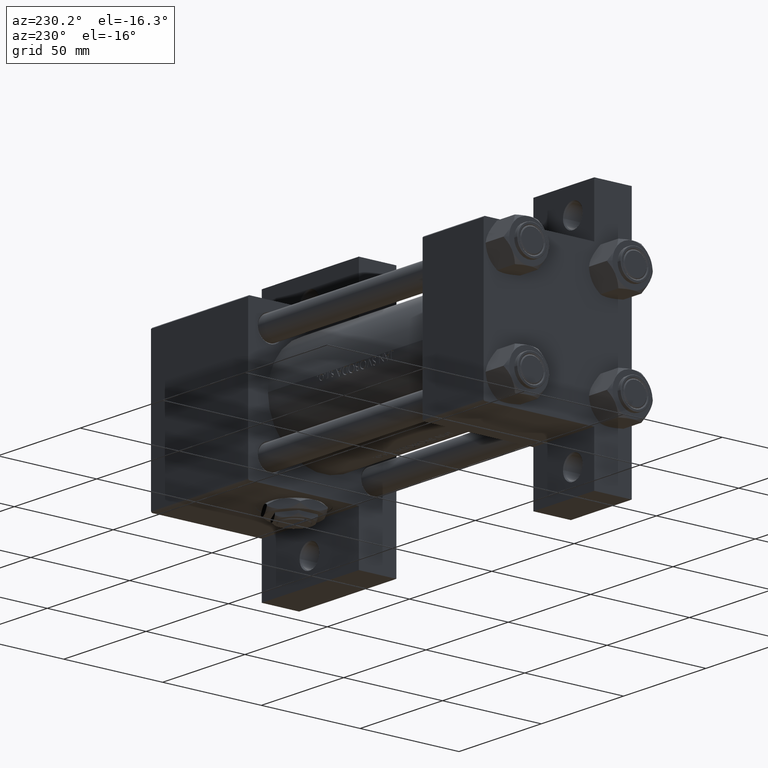
[diagram: clean part render]
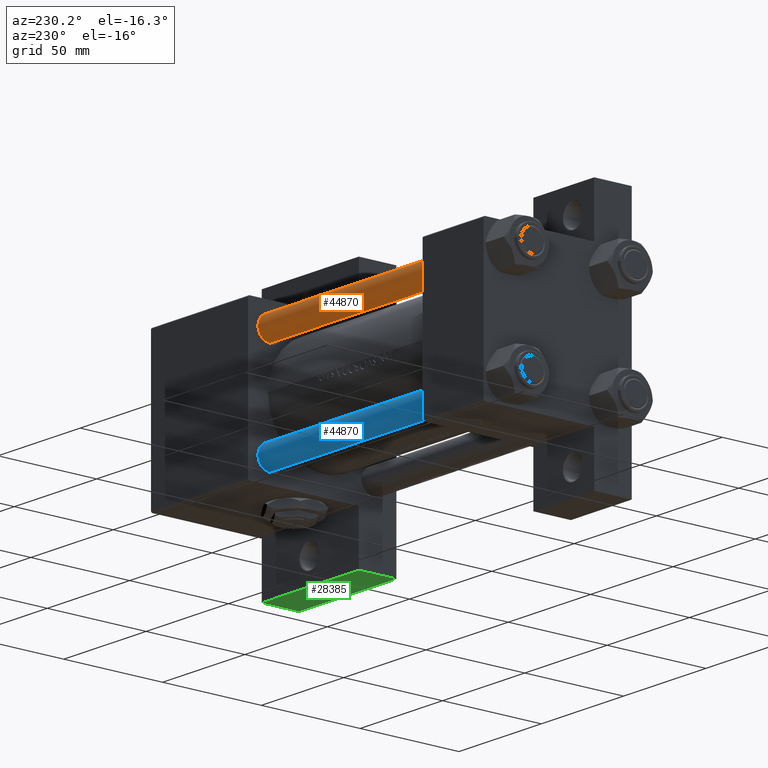
[diagram: same view with three faces highlighted in distinct colors, each labeled with its STEP entity id]
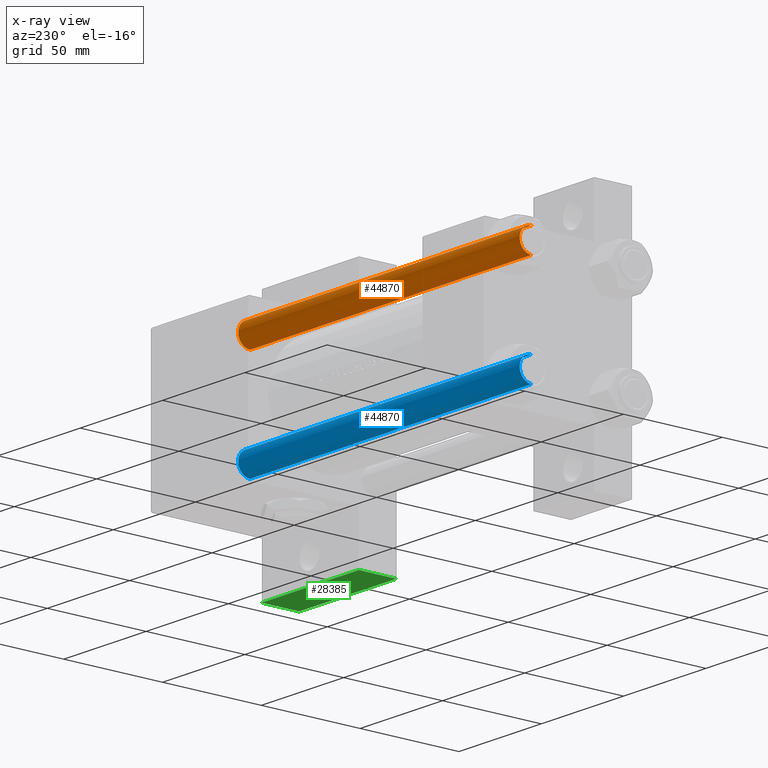
[diagram: x-ray of the same camera — body ghosted, the three highlighted faces saturated]
A machine part, auxiliary view with three faces highlighted in distinct colors.
The next image is the same camera in x-ray (body ghosted, the three faces saturated) — at least one of them is partly hidden behind the body in this view.
Their STEP definitions:

[orange] entity #44870 — the highlighted cylindrical surface (edge-blend (fillet) strip) has radius 6 mm, axis along (-1, -0, -0).
#79 = AXIS2_PLACEMENT_3D ( 'NONE', #31497, #15603, #27308 ) ;
#737 = CIRCLE ( 'NONE', #15093, 6.000000000000000888 ) ;
#1161 = EDGE_CURVE ( 'NONE', #48507, #2739, #737, .T. ) ;
#1685 = EDGE_LOOP ( 'NONE', ( #9074, #19260, #31243, #37472 ) ) ;
#2739 = VERTEX_POINT ( 'NONE', #40871 ) ;
#3610 = CARTESIAN_POINT ( 'NONE',  ( -6.000000000000000888, 0.000000000000000000, 172.0000000000000000 ) ) ;
#5489 = VERTEX_POINT ( 'NONE', #16944 ) ;
#9074 = ORIENTED_EDGE ( 'NONE', *, *, #41871, .T. ) ;
#9291 = LINE ( 'NONE', #11384, #49253 ) ;
#11384 = CARTESIAN_POINT ( 'NONE',  ( 6.000000000000000888, 7.347880794884120722E-16, 172.0000000000000000 ) ) ;
#13047 = CARTESIAN_POINT ( 'NONE',  ( 0.000000000000000000, 0.000000000000000000, 172.0000000000000000 ) ) ;
#15093 = AXIS2_PLACEMENT_3D ( 'NONE', #46628, #27713, #42890 ) ;
#15580 = VECTOR ( 'NONE', #26551, 1000.000000000000000 ) ;
#15603 = DIRECTION ( 'NONE',  ( 0.000000000000000000, 0.000000000000000000, -1.000000000000000000 ) ) ;
#16944 = CARTESIAN_POINT ( 'NONE',  ( 6.000000000000000888, 7.347880794884120722E-16, 171.4999999999999716 ) ) ;
#17571 = CIRCLE ( 'NONE', #79, 6.000000000000000888 ) ;
#18263 = EDGE_CURVE ( 'NONE', #47462, #2739, #26302, .T. ) ;
#19260 = ORIENTED_EDGE ( 'NONE', *, *, #30757, .T. ) ;
#20781 = CYLINDRICAL_SURFACE ( 'NONE', #22317, 6.000000000000000888 ) ;
#22317 = AXIS2_PLACEMENT_3D ( 'NONE', #13047, #25243, #36428 ) ;
#25243 = DIRECTION ( 'NONE',  ( -0.000000000000000000, -0.000000000000000000, -1.000000000000000000 ) ) ;
#26302 = LINE ( 'NONE', #3610, #15580 ) ;
#26551 = DIRECTION ( 'NONE',  ( -0.000000000000000000, -0.000000000000000000, -1.000000000000000000 ) ) ;
#26956 = CARTESIAN_POINT ( 'NONE',  ( -6.000000000000000888, 0.000000000000000000, 171.4999999999999716 ) ) ;
#27308 = DIRECTION ( 'NONE',  ( 1.000000000000000000, 0.000000000000000000, 0.000000000000000000 ) ) ;
#27713 = DIRECTION ( 'NONE',  ( -0.000000000000000000, -0.000000000000000000, 1.000000000000000000 ) ) ;
#30757 = EDGE_CURVE ( 'NONE', #5489, #48507, #9291, .T. ) ;
#31243 = ORIENTED_EDGE ( 'NONE', *, *, #1161, .T. ) ;
#31497 = CARTESIAN_POINT ( 'NONE',  ( 0.000000000000000000, 0.000000000000000000, 171.4999999999999716 ) ) ;
#34525 = DIRECTION ( 'NONE',  ( -0.000000000000000000, -0.000000000000000000, -1.000000000000000000 ) ) ;
#35945 = FACE_OUTER_BOUND ( 'NONE', #1685, .T. ) ;
#36428 = DIRECTION ( 'NONE',  ( -1.000000000000000000, 0.000000000000000000, 0.000000000000000000 ) ) ;
#37472 = ORIENTED_EDGE ( 'NONE', *, *, #18263, .F. ) ;
#37715 = CARTESIAN_POINT ( 'NONE',  ( 6.000000000000000888, 7.347880794884120722E-16, 0.5000000000000004441 ) ) ;
#40871 = CARTESIAN_POINT ( 'NONE',  ( -6.000000000000000888, 0.000000000000000000, 0.5000000000000004441 ) ) ;
#41871 = EDGE_CURVE ( 'NONE', #47462, #5489, #17571, .T. ) ;
#42890 = DIRECTION ( 'NONE',  ( 1.000000000000000000, 0.000000000000000000, 0.000000000000000000 ) ) ;
#44870 = ADVANCED_FACE ( 'NONE', ( #35945 ), #20781, .T. ) ;
#46628 = CARTESIAN_POINT ( 'NONE',  ( 0.000000000000000000, 0.000000000000000000, 0.5000000000000004441 ) ) ;
#47462 = VERTEX_POINT ( 'NONE', #26956 ) ;
#48507 = VERTEX_POINT ( 'NONE', #37715 ) ;
#49253 = VECTOR ( 'NONE', #34525, 1000.000000000000000 ) ;

[blue] entity #44870 — the highlighted cylindrical surface (edge-blend (fillet) strip) has radius 6 mm, axis along (1, -0, -0).
#79 = AXIS2_PLACEMENT_3D ( 'NONE', #31497, #15603, #27308 ) ;
#737 = CIRCLE ( 'NONE', #15093, 6.000000000000000888 ) ;
#1161 = EDGE_CURVE ( 'NONE', #48507, #2739, #737, .T. ) ;
#1685 = EDGE_LOOP ( 'NONE', ( #9074, #19260, #31243, #37472 ) ) ;
#2739 = VERTEX_POINT ( 'NONE', #40871 ) ;
#3610 = CARTESIAN_POINT ( 'NONE',  ( -6.000000000000000888, 0.000000000000000000, 172.0000000000000000 ) ) ;
#5489 = VERTEX_POINT ( 'NONE', #16944 ) ;
#9074 = ORIENTED_EDGE ( 'NONE', *, *, #41871, .T. ) ;
#9291 = LINE ( 'NONE', #11384, #49253 ) ;
#11384 = CARTESIAN_POINT ( 'NONE',  ( 6.000000000000000888, 7.347880794884120722E-16, 172.0000000000000000 ) ) ;
#13047 = CARTESIAN_POINT ( 'NONE',  ( 0.000000000000000000, 0.000000000000000000, 172.0000000000000000 ) ) ;
#15093 = AXIS2_PLACEMENT_3D ( 'NONE', #46628, #27713, #42890 ) ;
#15580 = VECTOR ( 'NONE', #26551, 1000.000000000000000 ) ;
#15603 = DIRECTION ( 'NONE',  ( 0.000000000000000000, 0.000000000000000000, -1.000000000000000000 ) ) ;
#16944 = CARTESIAN_POINT ( 'NONE',  ( 6.000000000000000888, 7.347880794884120722E-16, 171.4999999999999716 ) ) ;
#17571 = CIRCLE ( 'NONE', #79, 6.000000000000000888 ) ;
#18263 = EDGE_CURVE ( 'NONE', #47462, #2739, #26302, .T. ) ;
#19260 = ORIENTED_EDGE ( 'NONE', *, *, #30757, .T. ) ;
#20781 = CYLINDRICAL_SURFACE ( 'NONE', #22317, 6.000000000000000888 ) ;
#22317 = AXIS2_PLACEMENT_3D ( 'NONE', #13047, #25243, #36428 ) ;
#25243 = DIRECTION ( 'NONE',  ( -0.000000000000000000, -0.000000000000000000, -1.000000000000000000 ) ) ;
#26302 = LINE ( 'NONE', #3610, #15580 ) ;
#26551 = DIRECTION ( 'NONE',  ( -0.000000000000000000, -0.000000000000000000, -1.000000000000000000 ) ) ;
#26956 = CARTESIAN_POINT ( 'NONE',  ( -6.000000000000000888, 0.000000000000000000, 171.4999999999999716 ) ) ;
#27308 = DIRECTION ( 'NONE',  ( 1.000000000000000000, 0.000000000000000000, 0.000000000000000000 ) ) ;
#27713 = DIRECTION ( 'NONE',  ( -0.000000000000000000, -0.000000000000000000, 1.000000000000000000 ) ) ;
#30757 = EDGE_CURVE ( 'NONE', #5489, #48507, #9291, .T. ) ;
#31243 = ORIENTED_EDGE ( 'NONE', *, *, #1161, .T. ) ;
#31497 = CARTESIAN_POINT ( 'NONE',  ( 0.000000000000000000, 0.000000000000000000, 171.4999999999999716 ) ) ;
#34525 = DIRECTION ( 'NONE',  ( -0.000000000000000000, -0.000000000000000000, -1.000000000000000000 ) ) ;
#35945 = FACE_OUTER_BOUND ( 'NONE', #1685, .T. ) ;
#36428 = DIRECTION ( 'NONE',  ( -1.000000000000000000, 0.000000000000000000, 0.000000000000000000 ) ) ;
#37472 = ORIENTED_EDGE ( 'NONE', *, *, #18263, .F. ) ;
#37715 = CARTESIAN_POINT ( 'NONE',  ( 6.000000000000000888, 7.347880794884120722E-16, 0.5000000000000004441 ) ) ;
#40871 = CARTESIAN_POINT ( 'NONE',  ( -6.000000000000000888, 0.000000000000000000, 0.5000000000000004441 ) ) ;
#41871 = EDGE_CURVE ( 'NONE', #47462, #5489, #17571, .T. ) ;
#42890 = DIRECTION ( 'NONE',  ( 1.000000000000000000, 0.000000000000000000, 0.000000000000000000 ) ) ;
#44870 = ADVANCED_FACE ( 'NONE', ( #35945 ), #20781, .T. ) ;
#46628 = CARTESIAN_POINT ( 'NONE',  ( 0.000000000000000000, 0.000000000000000000, 0.5000000000000004441 ) ) ;
#47462 = VERTEX_POINT ( 'NONE', #26956 ) ;
#48507 = VERTEX_POINT ( 'NONE', #37715 ) ;
#49253 = VECTOR ( 'NONE', #34525, 1000.000000000000000 ) ;

[green] entity #28385 — the highlighted planar face has unit normal (-0, 0, -1).
#730 = LINE ( 'NONE', #26919, #36473 ) ;
#788 = VERTEX_POINT ( 'NONE', #27356 ) ;
#2365 = DIRECTION ( 'NONE',  ( 1.000000000000000000, 4.704334850106593822E-16, 0.000000000000000000 ) ) ;
#5292 = CARTESIAN_POINT ( 'NONE',  ( 202.0000000000000284, 63.50000000000000000, -18.50000000000000000 ) ) ;
#5757 = ORIENTED_EDGE ( 'NONE', *, *, #26720, .T. ) ;
#5888 = VERTEX_POINT ( 'NONE', #14362 ) ;
#5899 = CARTESIAN_POINT ( 'NONE',  ( 202.0000000000000284, 63.50000000000000000, -18.50000000000000000 ) ) ;
#9312 = CARTESIAN_POINT ( 'NONE',  ( 143.0000000000000284, 63.49999999999997158, -18.50000000000000000 ) ) ;
#10197 = AXIS2_PLACEMENT_3D ( 'NONE', #9312, #24526, #19551 ) ;
#12687 = DIRECTION ( 'NONE',  ( 0.000000000000000000, 0.000000000000000000, -1.000000000000000000 ) ) ;
#14362 = CARTESIAN_POINT ( 'NONE',  ( 202.0000000000000284, 63.50000000000000000, -37.50000000000000000 ) ) ;
#15511 = LINE ( 'NONE', #23714, #16721 ) ;
#16721 = VECTOR ( 'NONE', #22991, 1000.000000000000000 ) ;
#17840 = VERTEX_POINT ( 'NONE', #33550 ) ;
#18007 = ORIENTED_EDGE ( 'NONE', *, *, #28997, .F. ) ;
#19246 = VERTEX_POINT ( 'NONE', #5899 ) ;
#19551 = DIRECTION ( 'NONE',  ( -1.000000000000000000, -4.704334850106593822E-16, 0.000000000000000000 ) ) ;
#22991 = DIRECTION ( 'NONE',  ( 1.000000000000000000, 4.704334850106593822E-16, 0.000000000000000000 ) ) ;
#23714 = CARTESIAN_POINT ( 'NONE',  ( 143.0000000000000284, 63.49999999999997158, -37.50000000000000000 ) ) ;
#24526 = DIRECTION ( 'NONE',  ( -4.704334850106593822E-16, 1.000000000000000000, 0.000000000000000000 ) ) ;
#25540 = CARTESIAN_POINT ( 'NONE',  ( 143.0000000000000284, 63.49999999999997158, -18.50000000000000000 ) ) ;
#26720 = EDGE_CURVE ( 'NONE', #19246, #5888, #39415, .T. ) ;
#26919 = CARTESIAN_POINT ( 'NONE',  ( 143.0000000000000284, 63.49999999999997158, -18.50000000000000000 ) ) ;
#27356 = CARTESIAN_POINT ( 'NONE',  ( 143.0000000000000284, 63.49999999999997158, -37.50000000000000000 ) ) ;
#27682 = VECTOR ( 'NONE', #33347, 1000.000000000000000 ) ;
#28303 = LINE ( 'NONE', #25540, #46290 ) ;
#28385 = ADVANCED_FACE ( 'NONE', ( #43441 ), #31479, .T. ) ;
#28997 = EDGE_CURVE ( 'NONE', #17840, #788, #730, .T. ) ;
#31479 = PLANE ( 'NONE',  #10197 ) ;
#33347 = DIRECTION ( 'NONE',  ( 0.000000000000000000, 0.000000000000000000, -1.000000000000000000 ) ) ;
#33550 = CARTESIAN_POINT ( 'NONE',  ( 143.0000000000000284, 63.49999999999997158, -18.50000000000000000 ) ) ;
#36473 = VECTOR ( 'NONE', #12687, 1000.000000000000000 ) ;
#39415 = LINE ( 'NONE', #5292, #27682 ) ;
#43441 = FACE_OUTER_BOUND ( 'NONE', #43854, .T. ) ;
#43854 = EDGE_LOOP ( 'NONE', ( #46215, #18007, #48704, #5757 ) ) ;
#45035 = EDGE_CURVE ( 'NONE', #788, #5888, #15511, .T. ) ;
#46215 = ORIENTED_EDGE ( 'NONE', *, *, #45035, .F. ) ;
#46290 = VECTOR ( 'NONE', #2365, 1000.000000000000000 ) ;
#48399 = EDGE_CURVE ( 'NONE', #17840, #19246, #28303, .T. ) ;
#48704 = ORIENTED_EDGE ( 'NONE', *, *, #48399, .T. ) ;